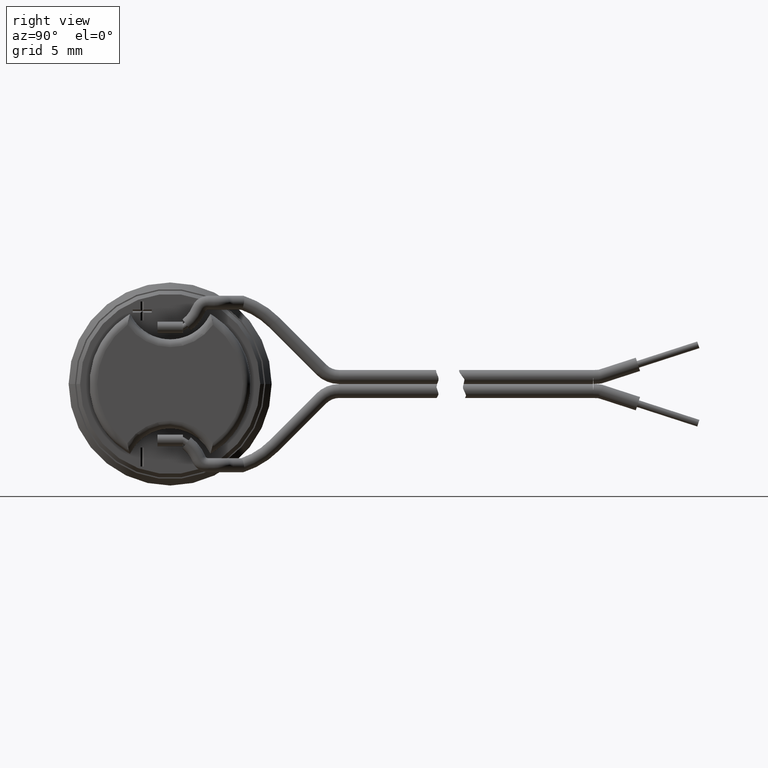
[diagram: clean part render]
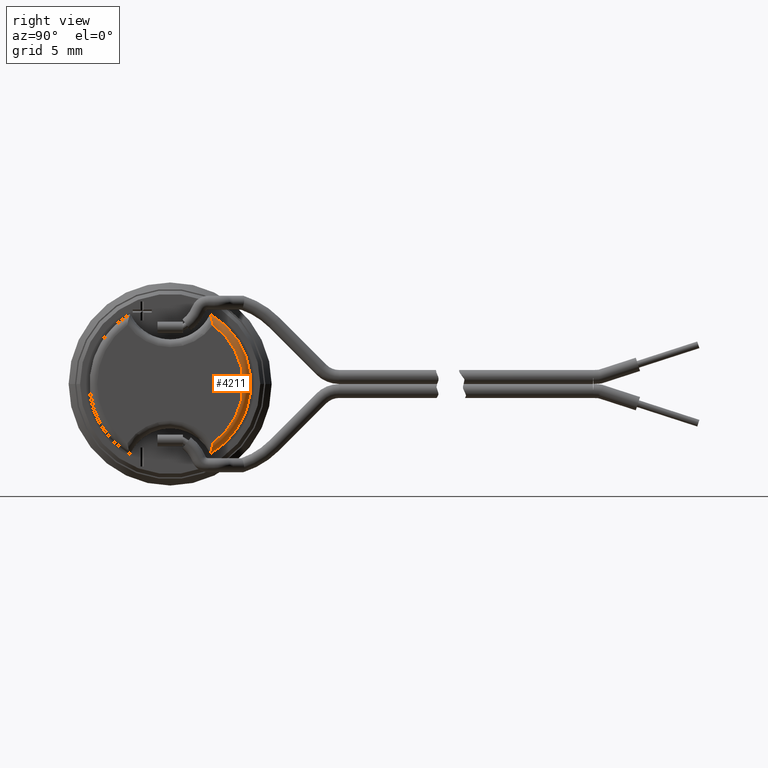
[diagram: same view with one face highlighted and labeled with its STEP entity id]
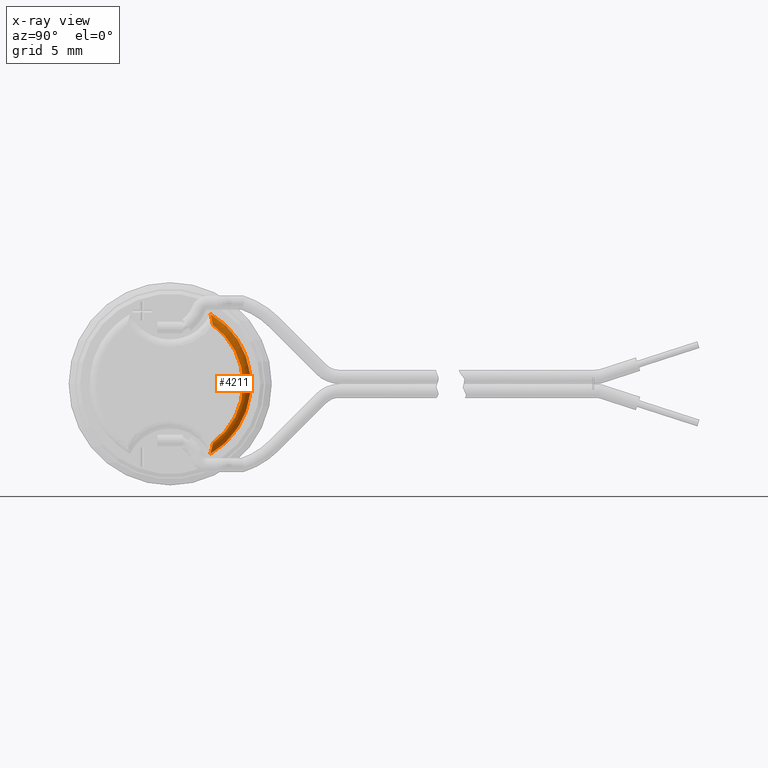
[diagram: x-ray of the same camera — body ghosted, the highlighted face saturated]
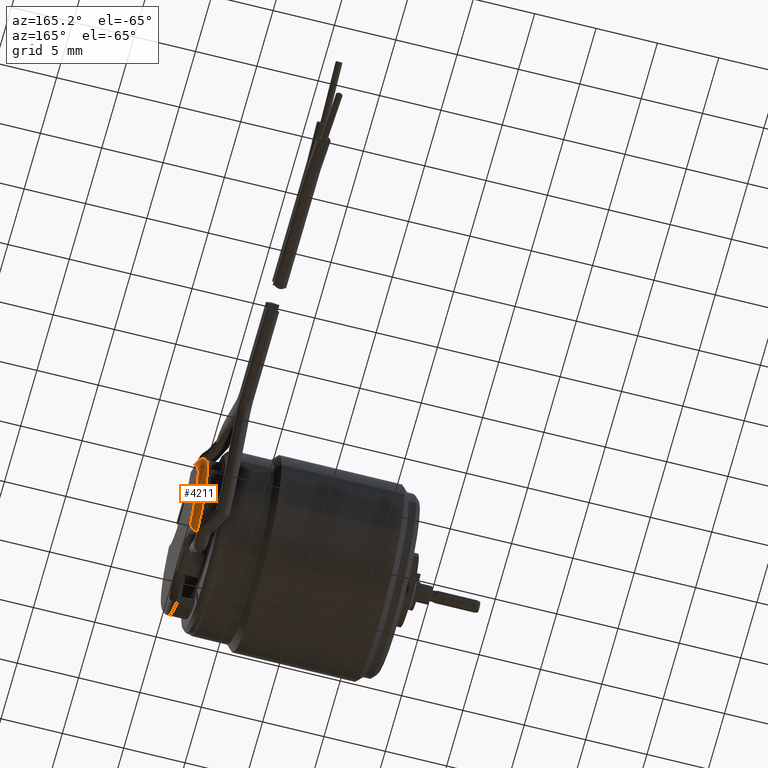
[diagram: same view with one face highlighted and labeled with its STEP entity id]
A machine part, right view. The second image highlights one B-rep face of the part: STEP entity #4211.
The next image is the same camera in x-ray: the body ghosted, the highlighted face saturated — about 0% of this face is hidden behind the body in this view.
A second angle (auxiliary view) of the same face is appended — the face is thin or edge-on in the first view.
In plain terms, the highlighted toroidal blend (fillet) surface has major radius 5.75 mm and minor (blend) radius 0.6 mm.
Its self-contained STEP definition (entity closure, byte-faithful):
#1019=CARTESIAN_POINT('',(2.38E1,0.E0,0.E0));
#1020=DIRECTION('',(-1.E0,0.E0,0.E0));
#1021=DIRECTION('',(0.E0,4.983825011053E-1,8.669572553431E-1));
#1022=AXIS2_PLACEMENT_3D('',#1019,#1020,#1021);
#1127=CARTESIAN_POINT('',(2.38E1,3.164728882019E0,5.505178571429E0));
#1128=CARTESIAN_POINT('',(2.385285552077E1,3.164728882019E0,5.505178571429E0));
#1129=CARTESIAN_POINT('',(2.395345791761E1,3.170969339829E0,5.485409128275E0));
#1130=CARTESIAN_POINT('',(2.408027744521E1,3.192557115E0,5.414723955562E0));
#1131=CARTESIAN_POINT('',(2.418318969272E1,3.220623060080E0,5.317713739279E0));
#1132=CARTESIAN_POINT('',(2.426481351283E1,3.251733414934E0,5.202503011855E0));
#1133=CARTESIAN_POINT('',(2.432666512094E1,3.283524197596E0,5.074682710066E0));
#1134=CARTESIAN_POINT('',(2.436978867656E1,3.314316065453E0,4.938642645943E0));
#1135=CARTESIAN_POINT('',(2.439480391656E1,3.342826197359E0,4.798533503531E0));
#1136=CARTESIAN_POINT('',(2.44E1,3.359503950780E0,4.706465077212E0));
#1137=CARTESIAN_POINT('',(2.44E1,3.367280471573E0,4.660892857143E0));
#1144=CARTESIAN_POINT('',(2.44E1,0.E0,0.E0));
#1145=DIRECTION('',(-1.E0,0.E0,0.E0));
#1146=DIRECTION('',(0.E0,5.856139950561E-1,8.105900621118E-1));
#1147=AXIS2_PLACEMENT_3D('',#1144,#1145,#1146);
#1183=CARTESIAN_POINT('',(2.38E1,3.164728882019E0,-5.505178571429E0));
#1184=CARTESIAN_POINT('',(2.385285910112E1,3.164728882019E0,-5.505178571429E0));
#1185=CARTESIAN_POINT('',(2.395345625596E1,3.170969339248E0,-5.485409131681E0));
#1186=CARTESIAN_POINT('',(2.408027789044E1,3.192557117034E0,-5.414723943641E0));
#1187=CARTESIAN_POINT('',(2.418318957342E1,3.220623052524E0,-5.317713783560E0));
#1188=CARTESIAN_POINT('',(2.426481354480E1,3.251733443124E0,-5.202502846653E0));
#1189=CARTESIAN_POINT('',(2.432666511237E1,3.283524092391E0,-5.074683326592E0));
#1190=CARTESIAN_POINT('',(2.436978867887E1,3.314316458082E0,-4.938640345042E0));
#1191=CARTESIAN_POINT('',(2.439480391590E1,3.342824732045E0,-4.798542090609E0));
#1192=CARTESIAN_POINT('',(2.44E1,3.359507108092E0,-4.706446574631E0));
#1193=CARTESIAN_POINT('',(2.44E1,3.367280471573E0,-4.660892857143E0));
#2749=CARTESIAN_POINT('',(2.44E1,3.367280471573E0,4.660892857143E0));
#2751=VERTEX_POINT('',#2749);
#2753=CARTESIAN_POINT('',(2.38E1,3.164728882019E0,5.505178571429E0));
#2755=VERTEX_POINT('',#2753);
#2757=CARTESIAN_POINT('',(2.44E1,3.367280471573E0,-4.660892857143E0));
#2758=VERTEX_POINT('',#2757);
#2759=CARTESIAN_POINT('',(2.38E1,3.164728882019E0,-5.505178571429E0));
#2760=VERTEX_POINT('',#2759);
#4197=CARTESIAN_POINT('',(2.38E1,0.E0,0.E0));
#4198=DIRECTION('',(-1.E0,0.E0,0.E0));
#4199=DIRECTION('',(0.E0,4.910420817527E-1,8.711358527509E-1));
#4200=AXIS2_PLACEMENT_3D('',#4197,#4198,#4199);
#4201=TOROIDAL_SURFACE('',#4200,5.75E0,6.E-1);
#4203=ORIENTED_EDGE('',*,*,#4202,.F.);
#4205=ORIENTED_EDGE('',*,*,#4204,.F.);
#4206=ORIENTED_EDGE('',*,*,#4142,.T.);
#4208=ORIENTED_EDGE('',*,*,#4207,.T.);
#4209=EDGE_LOOP('',(#4203,#4205,#4206,#4208));
#4210=FACE_OUTER_BOUND('',#4209,.F.);
#4211=ADVANCED_FACE('',(#4210),#4201,.T.);
#1023=CIRCLE('',#1022,6.35E0);
#1138=B_SPLINE_CURVE_WITH_KNOTS('',3,(#1127,#1128,#1129,#1130,#1131,#1132,#1133,
#1134,#1135,#1136,#1137),.UNSPECIFIED.,.F.,.F.,(4,1,1,1,1,1,1,1,4),(0.E0,
1.25E-1,2.5E-1,3.75E-1,5.E-1,6.25E-1,7.5E-1,8.75E-1,1.E0),.UNSPECIFIED.);
#1148=CIRCLE('',#1147,5.75E0);
#1194=B_SPLINE_CURVE_WITH_KNOTS('',3,(#1183,#1184,#1185,#1186,#1187,#1188,#1189,
#1190,#1191,#1192,#1193),.UNSPECIFIED.,.F.,.F.,(4,1,1,1,1,1,1,1,4),(0.E0,
1.25E-1,2.5E-1,3.75E-1,5.E-1,6.25E-1,7.5E-1,8.75E-1,1.E0),.UNSPECIFIED.);
#4142=EDGE_CURVE('',#2755,#2760,#1023,.T.);
#4202=EDGE_CURVE('',#2751,#2758,#1148,.T.);
#4204=EDGE_CURVE('',#2755,#2751,#1138,.T.);
#4207=EDGE_CURVE('',#2760,#2758,#1194,.T.);